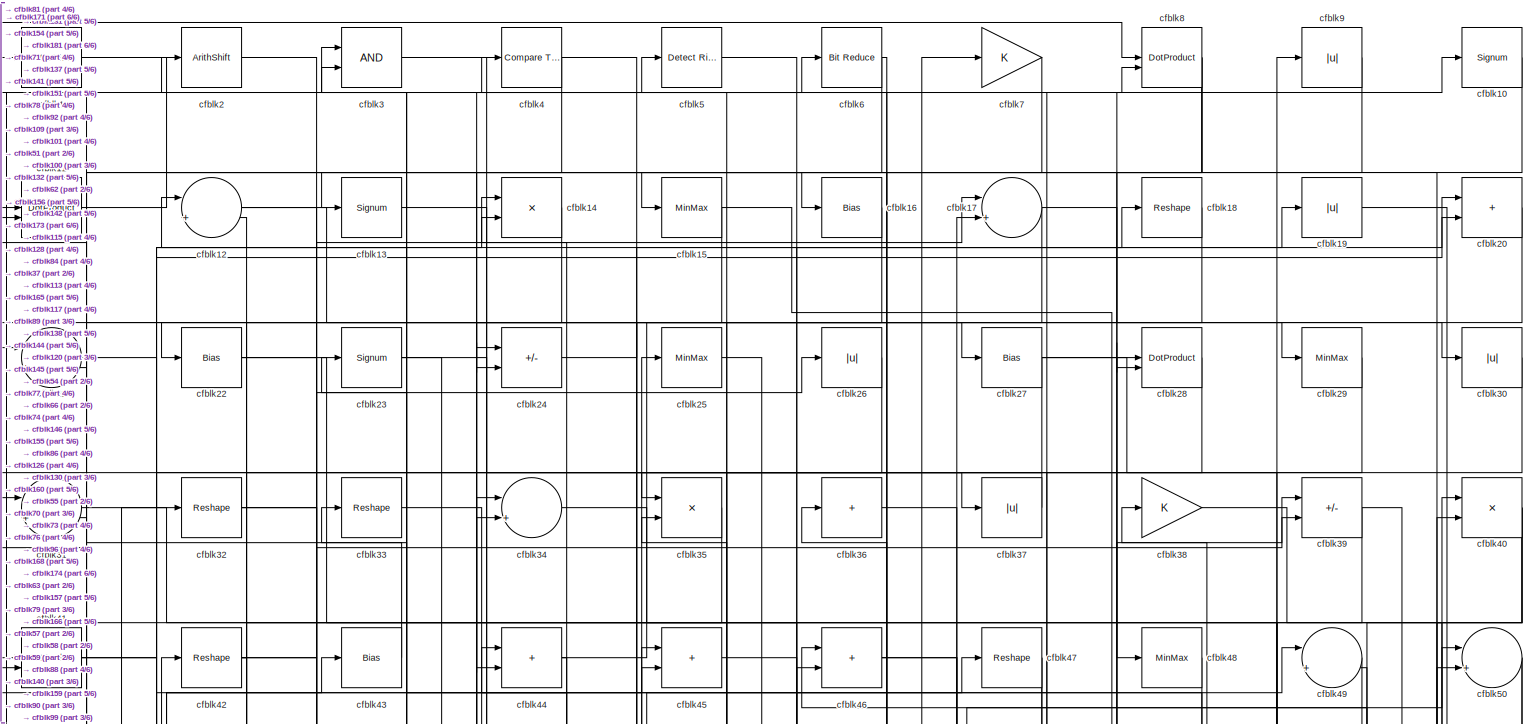
[diagram: root canvas - part 1/6, full width, top band]
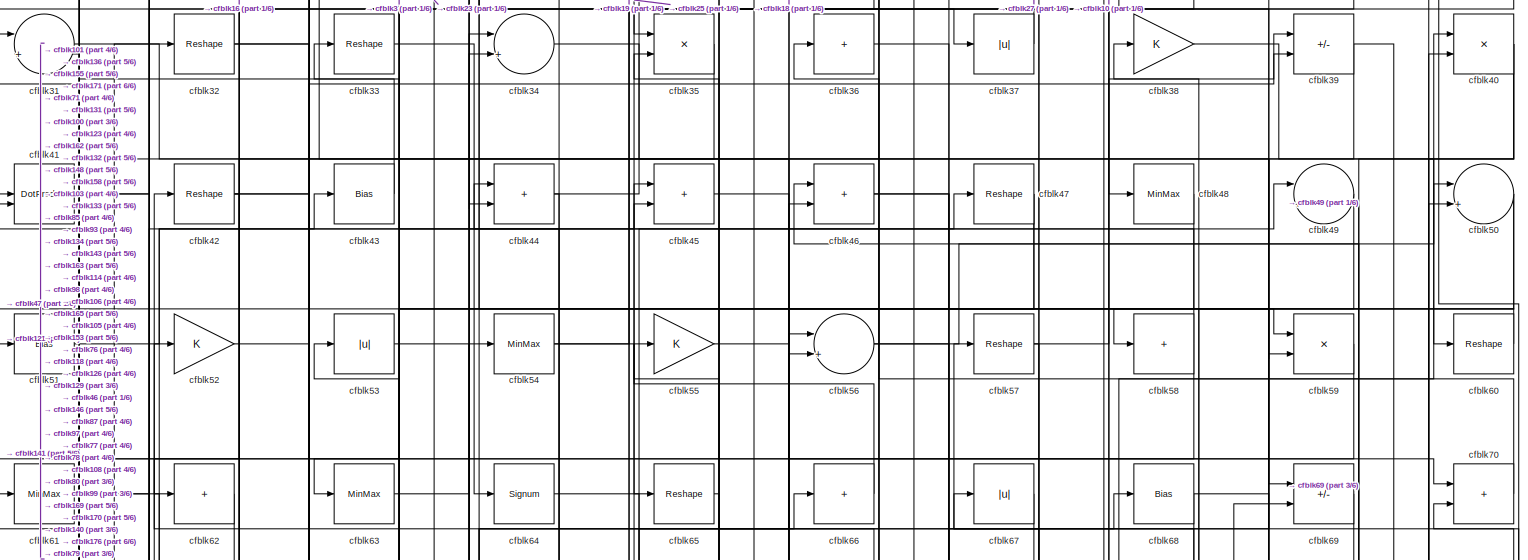
[diagram: root canvas - part 2/6, full width, top band]
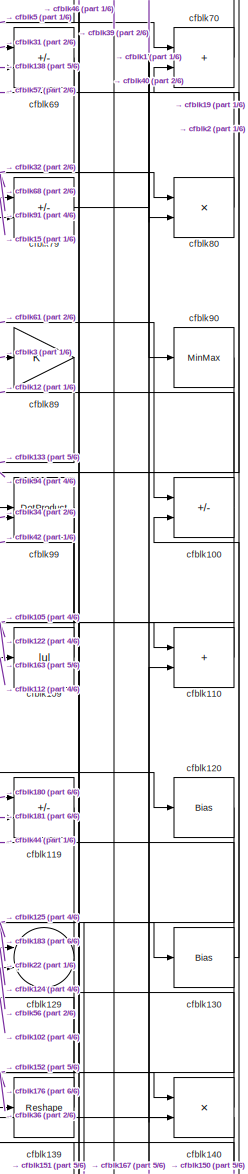
[diagram: root canvas - part 3/6, middle right region]
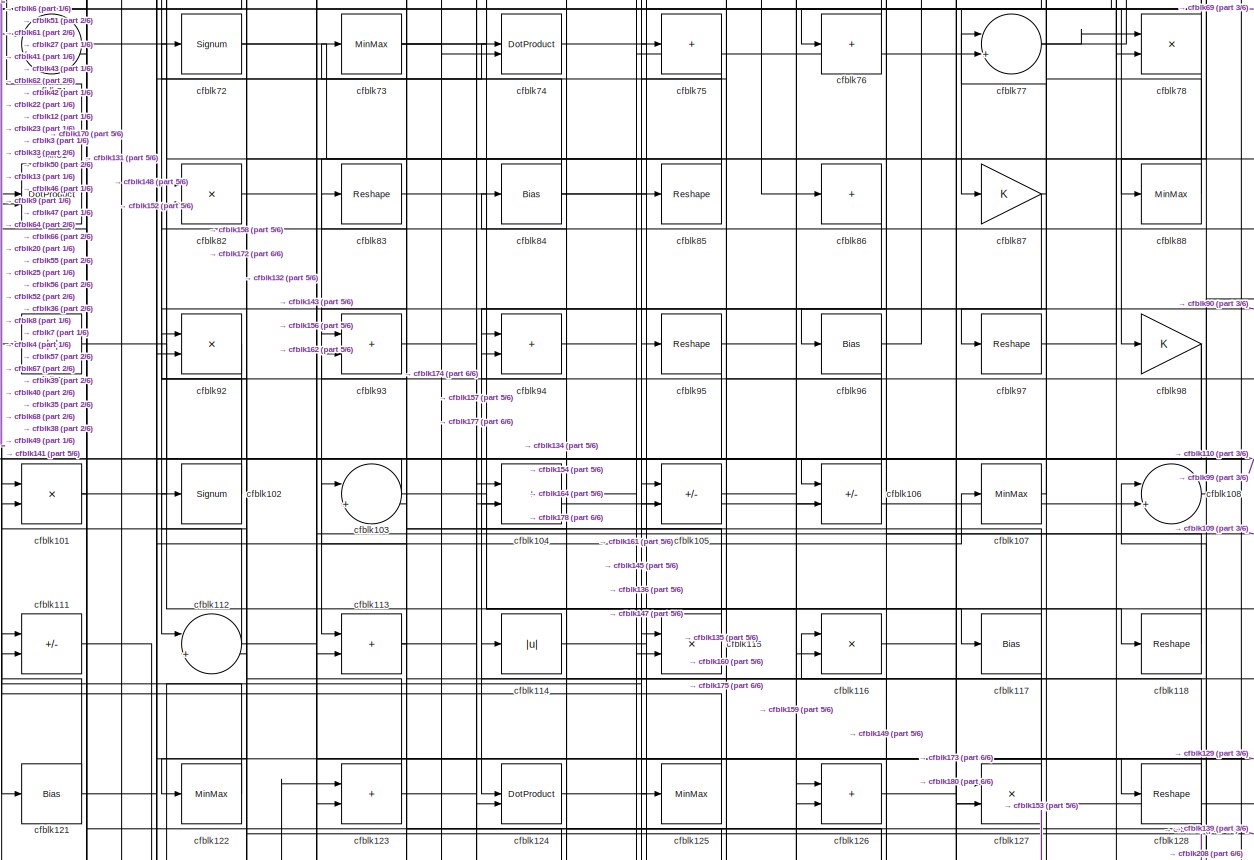
[diagram: root canvas - part 4/6, full width, middle band]
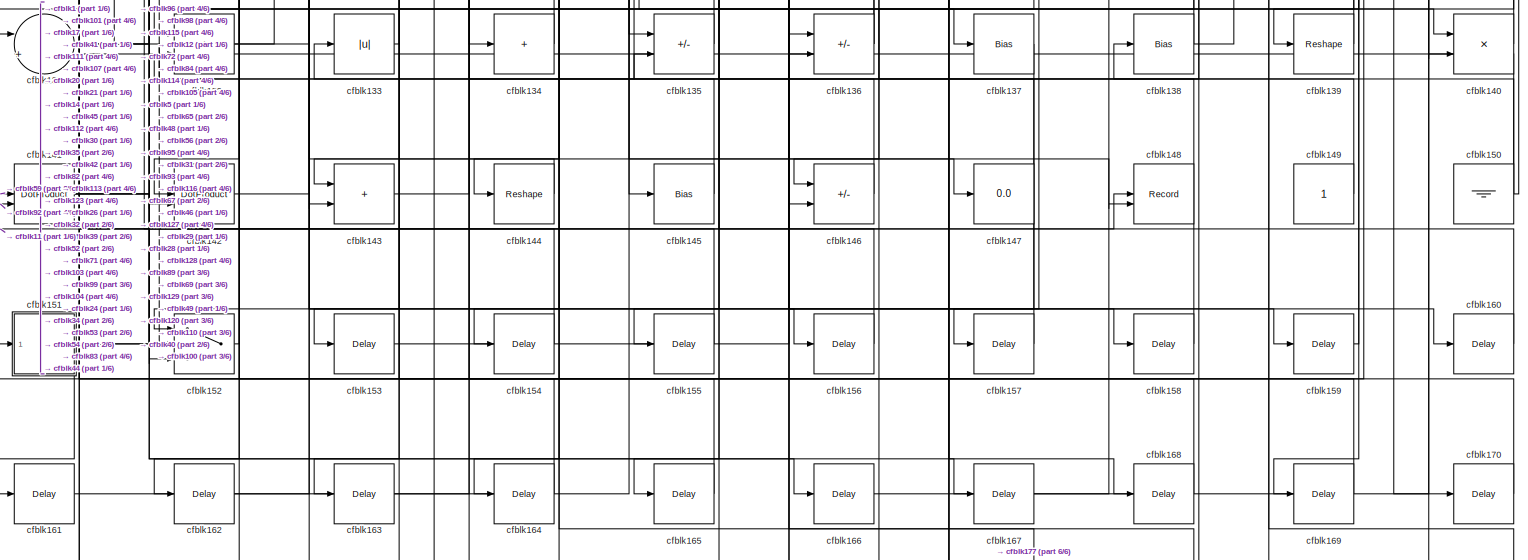
[diagram: root canvas - part 5/6, full width, bottom band]
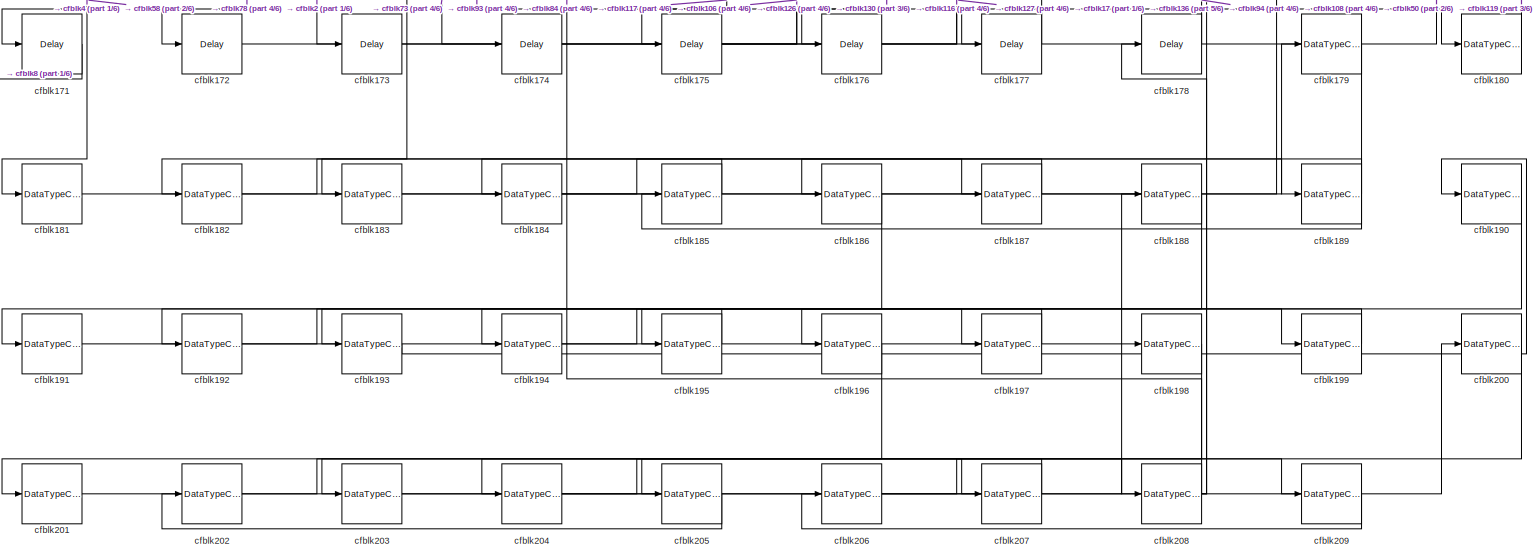
[diagram: root canvas - part 6/6, full width, bottom band]
MODEL slx_5cf155c669c9
KIND model
CONFIG AbsTol = auto
CONFIG EnableMultiTasking = off
CONFIG FixedStep = auto
CONFIG MaxStep = auto
CONFIG MinStep = auto
CONFIG RelTol = 1e-3
CONFIG SampleTimeConstraint = Unconstrained
CONFIG SolverName = VariableStepAuto
CONFIG StartTime = 0.0
CONFIG StopTime = 10.0
BLOCK [Reference] cfblk1  REF=simulink/Logic and Bit
Operations/Detect
Increase
  LibrarySourceBlock = hdlsllib/Logic and Bit\nOperations/Detect\nIncrease
  SourceBlock = simulink/Logic and Bit\nOperations/Detect\nIncrease
  SourceType = Detect Increase
BLOCK [Signum] cfblk10
BLOCK [Sum] cfblk100
  IconShape = rectangular
  Inputs = +-
BLOCK [Product] cfblk101
  Inputs = */
  RndMeth = Zero
  SaturateOnIntegerOverflow = on
BLOCK [Signum] cfblk102
BLOCK [Sum] cfblk103
  Inputs = |++
BLOCK [Sum] cfblk104
  IconShape = rectangular
BLOCK [Sum] cfblk105
  IconShape = rectangular
  Inputs = +-
BLOCK [Sum] cfblk106
  IconShape = rectangular
  Inputs = +-
BLOCK [MinMax] cfblk107
BLOCK [Sum] cfblk108
  Inputs = |++
BLOCK [Abs] cfblk109
  SaturateOnIntegerOverflow = off
BLOCK [DotProduct] cfblk11
  OutDataTypeStr = Inherit: Inherit via internal rule
BLOCK [Sum] cfblk110
  IconShape = rectangular
BLOCK [Sum] cfblk111
  IconShape = rectangular
  Inputs = +-
BLOCK [Sum] cfblk112
  Inputs = |++
BLOCK [Sum] cfblk113
  IconShape = rectangular
BLOCK [Abs] cfblk114
  SaturateOnIntegerOverflow = off
BLOCK [Product] cfblk115
  Inputs = */
  RndMeth = Zero
  SaturateOnIntegerOverflow = on
BLOCK [Product] cfblk116
  Inputs = */
  RndMeth = Zero
  SaturateOnIntegerOverflow = on
BLOCK [Bias] cfblk117
  Bias = 0.0
  SaturateOnIntegerOverflow = off
BLOCK [Reshape] cfblk118
BLOCK [Sum] cfblk119
  IconShape = rectangular
  Inputs = +-
BLOCK [Sum] cfblk12
  Inputs = |++
BLOCK [Bias] cfblk120
  Bias = 0.0
  SaturateOnIntegerOverflow = off
BLOCK [Bias] cfblk121
  Bias = 0.0
  SaturateOnIntegerOverflow = off
BLOCK [MinMax] cfblk122
BLOCK [Sum] cfblk123
  IconShape = rectangular
BLOCK [DotProduct] cfblk124
  OutDataTypeStr = Inherit: Inherit via internal rule
BLOCK [MinMax] cfblk125
BLOCK [Sum] cfblk126
  IconShape = rectangular
BLOCK [Product] cfblk127
  Inputs = */
  RndMeth = Zero
  SaturateOnIntegerOverflow = on
BLOCK [Reshape] cfblk128
BLOCK [Sum] cfblk129
  Inputs = |++
BLOCK [Signum] cfblk13
BLOCK [Bias] cfblk130
  Bias = 0.0
  SaturateOnIntegerOverflow = off
BLOCK [Sum] cfblk131
  Inputs = |++
BLOCK [Sum] cfblk132
  IconShape = rectangular
BLOCK [Abs] cfblk133
  SaturateOnIntegerOverflow = off
BLOCK [Sum] cfblk134
  IconShape = rectangular
  Inputs = +
BLOCK [Sum] cfblk135
  IconShape = rectangular
  Inputs = +-
BLOCK [Sum] cfblk136
  IconShape = rectangular
  Inputs = +-
BLOCK [Bias] cfblk137
  Bias = 0.0
  SaturateOnIntegerOverflow = off
BLOCK [Bias] cfblk138
  Bias = 0.0
  SaturateOnIntegerOverflow = off
BLOCK [Reshape] cfblk139
BLOCK [Product] cfblk14
  Inputs = */
  RndMeth = Zero
  SaturateOnIntegerOverflow = on
BLOCK [Product] cfblk140
  Inputs = */
  RndMeth = Zero
  SaturateOnIntegerOverflow = on
BLOCK [DotProduct] cfblk141
  OutDataTypeStr = Inherit: Inherit via internal rule
BLOCK [DotProduct] cfblk142
  OutDataTypeStr = Inherit: Inherit via internal rule
BLOCK [Sum] cfblk143
  IconShape = rectangular
BLOCK [Reshape] cfblk144
BLOCK [Bias] cfblk145
  Bias = 0.0
  SaturateOnIntegerOverflow = off
BLOCK [Sum] cfblk146
  IconShape = rectangular
  Inputs = +-
BLOCK [Display] cfblk147
  Decimation = 1
BLOCK [Record] cfblk148
  CompatibilityTag = XY
  FileSettingsInternal = {"entries":[{"content":{"excelSettings":{"content":{},"type":"Streamout.ExcelSettings"}},"type":"Streamout.FileSettingStorage","uuid":""}],"packageUris":["http:\/\/schema.mathworks.com\/mf0\/streamout_blocks\/R2020a"],"version":"1.0"}
  Layout = [1 1]
  SignalsInternal = {"entries":[{"content":{"signals":[{"content":{"blockPath":[],"dimensions":[1],"domain":"","lineColor":"#a2142f","plots":[1],"port":1,"signalID":1719,"signalName":"XY Graph:1"},"type":"RecordBlkView.Signal","uuid":""},{"content":{"blockPath":[],"dimensions":[1],"domain":"","lineColor":"#139fff","plots":[1],"port":2,"signalID":1722,"signalName":"XY Graph:2"},"type":"RecordBlkView.Signal","uuid":""}...<+146ch>
  VisualizationBindings = {"xyplotplugin":{"info":[{"series":[{"bindingParametersList":[{"parameter":"X-Axis","signalID":1719,"signalName":"XY Graph:1"},{"parameter":"Y-Axis","signalID":1722,"signalName":"XY Graph:2"}],"seriesID":40114}],"subplotID":1}]}}
  st = -1
BLOCK [Constant] cfblk149
  SampleTime = -1
BLOCK [MinMax] cfblk15
BLOCK [Ground] cfblk150
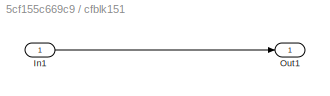
BLOCK [SubSystem] cfblk151
  LibrarySourceBlock = hdlsllib/Ports &\nSubsystems/Subsystem
BLOCK [Inport] cfblk151/In1
BLOCK [Outport] cfblk151/Out1
BLOCK [Switch] cfblk152
  InputSameDT = off
  SaturateOnIntegerOverflow = off
BLOCK [Delay] cfblk153
  InputPortMap = u0
  SampleTime = 1
BLOCK [Delay] cfblk154
  InputPortMap = u0
  SampleTime = 1
BLOCK [Delay] cfblk155
  InputPortMap = u0
  SampleTime = 1
BLOCK [Delay] cfblk156
  InputPortMap = u0
  SampleTime = 1
BLOCK [Delay] cfblk157
  InputPortMap = u0
  SampleTime = 1
BLOCK [Delay] cfblk158
  InputPortMap = u0
  SampleTime = 1
BLOCK [Delay] cfblk159
  InputPortMap = u0
  SampleTime = 1
BLOCK [Bias] cfblk16
  Bias = 0.0
  SaturateOnIntegerOverflow = off
BLOCK [Delay] cfblk160
  InputPortMap = u0
  SampleTime = 1
BLOCK [Delay] cfblk161
  InputPortMap = u0
  SampleTime = 1
BLOCK [Delay] cfblk162
  InputPortMap = u0
  SampleTime = 1
BLOCK [Delay] cfblk163
  InputPortMap = u0
  SampleTime = 1
BLOCK [Delay] cfblk164
  InputPortMap = u0
  SampleTime = 1
BLOCK [Delay] cfblk165
  InputPortMap = u0
  SampleTime = 1
BLOCK [Delay] cfblk166
  InputPortMap = u0
  SampleTime = 1
BLOCK [Delay] cfblk167
  InputPortMap = u0
  SampleTime = 1
BLOCK [Delay] cfblk168
  InputPortMap = u0
  SampleTime = 1
BLOCK [Delay] cfblk169
  InputPortMap = u0
  SampleTime = 1
BLOCK [Sum] cfblk17
  Inputs = |++
BLOCK [Delay] cfblk170
  InputPortMap = u0
  SampleTime = 1
BLOCK [Delay] cfblk171
  InputPortMap = u0
  SampleTime = 1
BLOCK [Delay] cfblk172
  InputPortMap = u0
  SampleTime = 1
BLOCK [Delay] cfblk173
  InputPortMap = u0
  SampleTime = 1
BLOCK [Delay] cfblk174
  InputPortMap = u0
  SampleTime = 1
BLOCK [Delay] cfblk175
  InputPortMap = u0
  SampleTime = 1
BLOCK [Delay] cfblk176
  InputPortMap = u0
  SampleTime = 1
BLOCK [Delay] cfblk177
  InputPortMap = u0
  SampleTime = 1
BLOCK [Delay] cfblk178
  InputPortMap = u0
  SampleTime = 1
BLOCK [DataTypeConversion] cfblk179
  RndMeth = Floor
  SaturateOnIntegerOverflow = off
BLOCK [Reshape] cfblk18
BLOCK [DataTypeConversion] cfblk180
  OutDataTypeStr = uint8
  RndMeth = Floor
  SaturateOnIntegerOverflow = off
BLOCK [DataTypeConversion] cfblk181
  OutDataTypeStr = uint8
  RndMeth = Floor
  SaturateOnIntegerOverflow = off
BLOCK [DataTypeConversion] cfblk182
  RndMeth = Floor
  SaturateOnIntegerOverflow = off
BLOCK [DataTypeConversion] cfblk183
  OutDataTypeStr = uint8
  RndMeth = Floor
  SaturateOnIntegerOverflow = off
BLOCK [DataTypeConversion] cfblk184
  RndMeth = Floor
  SaturateOnIntegerOverflow = off
BLOCK [DataTypeConversion] cfblk185
  OutDataTypeStr = uint8
  RndMeth = Floor
  SaturateOnIntegerOverflow = off
BLOCK [DataTypeConversion] cfblk186
  RndMeth = Floor
  SaturateOnIntegerOverflow = off
BLOCK [DataTypeConversion] cfblk187
  OutDataTypeStr = uint8
  RndMeth = Floor
  SaturateOnIntegerOverflow = off
BLOCK [DataTypeConversion] cfblk188
  RndMeth = Floor
  SaturateOnIntegerOverflow = off
BLOCK [DataTypeConversion] cfblk189
  OutDataTypeStr = uint8
  RndMeth = Floor
  SaturateOnIntegerOverflow = off
BLOCK [Abs] cfblk19
  SaturateOnIntegerOverflow = off
BLOCK [DataTypeConversion] cfblk190
  RndMeth = Floor
  SaturateOnIntegerOverflow = off
BLOCK [DataTypeConversion] cfblk191
  OutDataTypeStr = uint8
  RndMeth = Floor
  SaturateOnIntegerOverflow = off
BLOCK [DataTypeConversion] cfblk192
  RndMeth = Floor
  SaturateOnIntegerOverflow = off
BLOCK [DataTypeConversion] cfblk193
  OutDataTypeStr = uint8
  RndMeth = Floor
  SaturateOnIntegerOverflow = off
BLOCK [DataTypeConversion] cfblk194
  RndMeth = Floor
  SaturateOnIntegerOverflow = off
BLOCK [DataTypeConversion] cfblk195
  OutDataTypeStr = uint8
  RndMeth = Floor
  SaturateOnIntegerOverflow = off
BLOCK [DataTypeConversion] cfblk196
  RndMeth = Floor
  SaturateOnIntegerOverflow = off
BLOCK [DataTypeConversion] cfblk197
  OutDataTypeStr = uint8
  RndMeth = Floor
  SaturateOnIntegerOverflow = off
BLOCK [DataTypeConversion] cfblk198
  RndMeth = Floor
  SaturateOnIntegerOverflow = off
BLOCK [DataTypeConversion] cfblk199
  OutDataTypeStr = uint8
  RndMeth = Floor
  SaturateOnIntegerOverflow = off
BLOCK [ArithShift] cfblk2
  BitShiftNumber = 8
  InputPortMap = u0
BLOCK [Sum] cfblk20
  IconShape = rectangular
BLOCK [DataTypeConversion] cfblk200
  RndMeth = Floor
  SaturateOnIntegerOverflow = off
BLOCK [DataTypeConversion] cfblk201
  OutDataTypeStr = uint8
  RndMeth = Floor
  SaturateOnIntegerOverflow = off
BLOCK [DataTypeConversion] cfblk202
  RndMeth = Floor
  SaturateOnIntegerOverflow = off
BLOCK [DataTypeConversion] cfblk203
  OutDataTypeStr = uint8
  RndMeth = Floor
  SaturateOnIntegerOverflow = off
BLOCK [DataTypeConversion] cfblk204
  RndMeth = Floor
  SaturateOnIntegerOverflow = off
BLOCK [DataTypeConversion] cfblk205
  OutDataTypeStr = uint8
  RndMeth = Floor
  SaturateOnIntegerOverflow = off
BLOCK [DataTypeConversion] cfblk206
  RndMeth = Floor
  SaturateOnIntegerOverflow = off
BLOCK [DataTypeConversion] cfblk207
  OutDataTypeStr = uint8
  RndMeth = Floor
  SaturateOnIntegerOverflow = off
BLOCK [DataTypeConversion] cfblk208
  RndMeth = Floor
  SaturateOnIntegerOverflow = off
BLOCK [DataTypeConversion] cfblk209
  OutDataTypeStr = uint8
  RndMeth = Floor
  SaturateOnIntegerOverflow = off
BLOCK [Sum] cfblk21
  Inputs = |++
BLOCK [Bias] cfblk22
  Bias = 0.0
  SaturateOnIntegerOverflow = off
BLOCK [Signum] cfblk23
BLOCK [Sum] cfblk24
  IconShape = rectangular
  Inputs = +-
BLOCK [MinMax] cfblk25
BLOCK [Abs] cfblk26
  SaturateOnIntegerOverflow = off
BLOCK [Bias] cfblk27
  Bias = 0.0
  SaturateOnIntegerOverflow = off
BLOCK [DotProduct] cfblk28
  OutDataTypeStr = Inherit: Inherit via internal rule
BLOCK [MinMax] cfblk29
BLOCK [Logic] cfblk3
  AllPortsSameDT = off
  OutDataTypeStr = boolean
BLOCK [Abs] cfblk30
  SaturateOnIntegerOverflow = off
BLOCK [Sum] cfblk31
  Inputs = |++
BLOCK [Reshape] cfblk32
BLOCK [Reshape] cfblk33
BLOCK [Sum] cfblk34
  Inputs = |++
BLOCK [Product] cfblk35
  Inputs = */
  RndMeth = Zero
  SaturateOnIntegerOverflow = on
BLOCK [Sum] cfblk36
  IconShape = rectangular
  Inputs = +
BLOCK [Abs] cfblk37
  SaturateOnIntegerOverflow = off
BLOCK [Gain] cfblk38
BLOCK [Sum] cfblk39
  IconShape = rectangular
  Inputs = +-
BLOCK [Reference] cfblk4  REF=hdlsllib/Logic and Bit
Operations/Compare
To Zero
  SourceBlock = hdlsllib/Logic and Bit\nOperations/Compare\nTo Zero
  SourceType = Compare To Zero
BLOCK [Product] cfblk40
  Inputs = */
  RndMeth = Zero
  SaturateOnIntegerOverflow = on
BLOCK [DotProduct] cfblk41
  OutDataTypeStr = Inherit: Inherit via internal rule
BLOCK [Reshape] cfblk42
BLOCK [Bias] cfblk43
  Bias = 0.0
  SaturateOnIntegerOverflow = off
BLOCK [Sum] cfblk44
  IconShape = rectangular
BLOCK [Sum] cfblk45
  IconShape = rectangular
BLOCK [Sum] cfblk46
  IconShape = rectangular
BLOCK [Reshape] cfblk47
BLOCK [MinMax] cfblk48
BLOCK [Sum] cfblk49
  Inputs = |++
BLOCK [Reference] cfblk5  REF=hdlsllib/Logic and Bit
Operations/Detect Rise
Positive
  SourceBlock = hdlsllib/Logic and Bit\nOperations/Detect Rise\nPositive
  SourceType = Detect Rise Positive
BLOCK [Sum] cfblk50
  Inputs = |++
BLOCK [Bias] cfblk51
  Bias = 0.0
  SaturateOnIntegerOverflow = off
BLOCK [Gain] cfblk52
BLOCK [Abs] cfblk53
  SaturateOnIntegerOverflow = off
BLOCK [MinMax] cfblk54
BLOCK [Gain] cfblk55
BLOCK [Sum] cfblk56
  Inputs = |++
BLOCK [Reshape] cfblk57
BLOCK [Sum] cfblk58
  IconShape = rectangular
  Inputs = +
BLOCK [Product] cfblk59
  Inputs = */
  RndMeth = Zero
  SaturateOnIntegerOverflow = on
BLOCK [Reference] cfblk6  REF=hdlsllib/Logic and Bit
Operations/Bit Reduce
  SourceBlock = hdlsllib/Logic and Bit\nOperations/Bit Reduce
  SourceType = Bit Reduce
BLOCK [Reshape] cfblk60
BLOCK [MinMax] cfblk61
BLOCK [Sum] cfblk62
  IconShape = rectangular
  Inputs = +
BLOCK [MinMax] cfblk63
BLOCK [Signum] cfblk64
BLOCK [Reshape] cfblk65
BLOCK [Sum] cfblk66
  IconShape = rectangular
  Inputs = +
BLOCK [Abs] cfblk67
  SaturateOnIntegerOverflow = off
BLOCK [Bias] cfblk68
  Bias = 0.0
  SaturateOnIntegerOverflow = off
BLOCK [Sum] cfblk69
  IconShape = rectangular
  Inputs = +-
BLOCK [Gain] cfblk7
BLOCK [Sum] cfblk70
  IconShape = rectangular
BLOCK [Sum] cfblk71
  Inputs = |++
BLOCK [Signum] cfblk72
BLOCK [MinMax] cfblk73
BLOCK [DotProduct] cfblk74
  OutDataTypeStr = Inherit: Inherit via internal rule
BLOCK [Sum] cfblk75
  IconShape = rectangular
  Inputs = +
BLOCK [Sum] cfblk76
  IconShape = rectangular
  Inputs = +
BLOCK [Sum] cfblk77
  Inputs = |++
BLOCK [Product] cfblk78
  Inputs = */
  RndMeth = Zero
  SaturateOnIntegerOverflow = on
BLOCK [Sum] cfblk79
  IconShape = rectangular
  Inputs = +-
BLOCK [DotProduct] cfblk8
  OutDataTypeStr = Inherit: Inherit via internal rule
BLOCK [Product] cfblk80
  Inputs = */
  RndMeth = Zero
  SaturateOnIntegerOverflow = on
BLOCK [DotProduct] cfblk81
  OutDataTypeStr = Inherit: Inherit via internal rule
BLOCK [Product] cfblk82
  Inputs = */
  RndMeth = Zero
  SaturateOnIntegerOverflow = on
BLOCK [Reshape] cfblk83
BLOCK [Bias] cfblk84
  Bias = 0.0
  SaturateOnIntegerOverflow = off
BLOCK [Reshape] cfblk85
BLOCK [Sum] cfblk86
  IconShape = rectangular
  Inputs = +
BLOCK [Gain] cfblk87
BLOCK [MinMax] cfblk88
BLOCK [Gain] cfblk89
BLOCK [Abs] cfblk9
  SaturateOnIntegerOverflow = off
BLOCK [MinMax] cfblk90
BLOCK [Abs] cfblk91
  SaturateOnIntegerOverflow = off
BLOCK [Product] cfblk92
  Inputs = */
  RndMeth = Zero
  SaturateOnIntegerOverflow = on
BLOCK [Sum] cfblk93
  IconShape = rectangular
BLOCK [Sum] cfblk94
  IconShape = rectangular
BLOCK [Reshape] cfblk95
BLOCK [Bias] cfblk96
  Bias = 0.0
  SaturateOnIntegerOverflow = off
BLOCK [Reshape] cfblk97
BLOCK [Gain] cfblk98
BLOCK [DotProduct] cfblk99
  OutDataTypeStr = Inherit: Inherit via internal rule
NET cfblk100:1 -> cfblk12:2, cfblk139:1
NET cfblk101:1 -> cfblk43:1, cfblk61:1
LINE cfblk102:1 -> cfblk82:1
NET cfblk103:1 -> cfblk101:1, cfblk116:2
LINE cfblk104:1 -> cfblk85:1
LINE cfblk105:1 -> cfblk56:2
LINE cfblk106:1 -> cfblk55:1
LINE cfblk107:1 -> cfblk77:1
LINE cfblk108:1 -> cfblk38:1
LINE cfblk109:1 -> cfblk42:1
LINE cfblk10:1 -> cfblk13:1
LINE cfblk110:1 -> cfblk105:1
LINE cfblk111:1 -> cfblk148:1
NET cfblk112:1 -> cfblk109:1, cfblk81:1
NET cfblk113:1 -> cfblk73:1, cfblk8:2
LINE cfblk114:1 -> cfblk66:1
NET cfblk115:1 -> cfblk12:1, cfblk72:1
LINE cfblk116:1 -> cfblk180:1
NET cfblk117:1 -> cfblk175:1, cfblk75:1
LINE cfblk118:1 -> cfblk36:1
LINE cfblk119:1 -> cfblk183:1
LINE cfblk11:1 -> cfblk16:1
LINE cfblk120:1 -> cfblk151:1
NET cfblk121:1 -> cfblk51:1, cfblk74:1
LINE cfblk122:1 -> cfblk111:1
NET cfblk123:1 -> cfblk108:2, cfblk92:1
LINE cfblk124:1 -> cfblk129:1
LINE cfblk125:1 -> cfblk111:2
LINE cfblk126:1 -> cfblk68:1
NET cfblk127:1 -> cfblk104:2, cfblk153:1
NET cfblk128:1 -> cfblk142:2, cfblk23:1
NET cfblk129:1 -> cfblk125:1, cfblk152:3
NET cfblk12:1 -> cfblk120:1, cfblk145:1
NET cfblk130:1 -> cfblk176:1, cfblk44:1, cfblk70:2
NET cfblk131:1 -> cfblk107:1, cfblk135:2, cfblk20:2, cfblk32:1
NET cfblk132:1 -> cfblk123:1, cfblk39:1
LINE cfblk133:1 -> cfblk53:1
LINE cfblk134:1 -> cfblk83:1
LINE cfblk135:1 -> cfblk114:1
NET cfblk136:1 -> cfblk31:1, cfblk93:2
LINE cfblk137:1 -> cfblk152:1
NET cfblk138:1 -> cfblk14:1, cfblk69:2
LINE cfblk139:1 -> cfblk102:1
LINE cfblk13:1 -> cfblk117:1
LINE cfblk140:1 -> cfblk46:1
NET cfblk141:1 -> cfblk166:1, cfblk167:1, cfblk45:2
LINE cfblk142:1 -> cfblk26:1
LINE cfblk143:1 -> cfblk54:1
LINE cfblk144:1 -> cfblk143:1
LINE cfblk145:1 -> cfblk95:1
LINE cfblk146:1 -> cfblk5:1
LINE cfblk149:1 -> cfblk116:1
LINE cfblk14:1 -> cfblk21:1
NET cfblk150:1 -> cfblk100:2, cfblk131:2, cfblk138:1
LINE cfblk151/In1:1 -> cfblk151/Out1:1
NET cfblk151:1 -> cfblk14:2, cfblk161:1, cfblk45:1
LINE cfblk152:1 -> cfblk82:2
LINE cfblk153:1 -> cfblk56:1
LINE cfblk154:1 -> cfblk1:1
LINE cfblk155:1 -> cfblk31:2
LINE cfblk156:1 -> cfblk11:1
LINE cfblk157:1 -> cfblk104:1
LINE cfblk158:1 -> cfblk112:2
LINE cfblk159:1 -> cfblk49:2
NET cfblk15:1 -> cfblk44:2, cfblk79:1
LINE cfblk160:1 -> cfblk105:2
LINE cfblk161:1 -> cfblk115:2
LINE cfblk162:1 -> cfblk113:2
LINE cfblk163:1 -> cfblk34:2
LINE cfblk164:1 -> cfblk103:1
LINE cfblk165:1 -> cfblk24:1
LINE cfblk166:1 -> cfblk28:1
LINE cfblk167:1 -> cfblk110:2
LINE cfblk168:1 -> cfblk41:2
LINE cfblk169:1 -> cfblk132:2
LINE cfblk16:1 -> cfblk62:1
LINE cfblk170:1 -> cfblk101:2
LINE cfblk171:1 -> cfblk8:1
LINE cfblk172:1 -> cfblk126:2
LINE cfblk173:1 -> cfblk127:1
LINE cfblk174:1 -> cfblk17:2
LINE cfblk175:1 -> cfblk106:2
LINE cfblk176:1 -> cfblk50:2
LINE cfblk177:1 -> cfblk136:1
LINE cfblk178:1 -> cfblk94:2
LINE cfblk179:1 -> cfblk185:1
NET cfblk17:1 -> cfblk131:1, cfblk29:1
LINE cfblk180:1 -> cfblk119:1
LINE cfblk181:1 -> cfblk119:2
LINE cfblk182:1 -> cfblk187:1
LINE cfblk183:1 -> cfblk179:1
LINE cfblk184:1 -> cfblk189:1
LINE cfblk185:1 -> cfblk182:1
LINE cfblk186:1 -> cfblk191:1
LINE cfblk187:1 -> cfblk184:1
LINE cfblk188:1 -> cfblk193:1
LINE cfblk189:1 -> cfblk186:1
LINE cfblk18:1 -> cfblk22:1
LINE cfblk190:1 -> cfblk195:1
LINE cfblk191:1 -> cfblk188:1
LINE cfblk192:1 -> cfblk197:1
LINE cfblk193:1 -> cfblk190:1
LINE cfblk194:1 -> cfblk199:1
LINE cfblk195:1 -> cfblk192:1
LINE cfblk196:1 -> cfblk201:1
LINE cfblk197:1 -> cfblk194:1
LINE cfblk198:1 -> cfblk203:1
LINE cfblk199:1 -> cfblk196:1
LINE cfblk19:1 -> cfblk99:1
LINE cfblk1:1 -> cfblk90:1
LINE cfblk200:1 -> cfblk205:1
LINE cfblk201:1 -> cfblk198:1
LINE cfblk202:1 -> cfblk207:1
LINE cfblk203:1 -> cfblk200:1
LINE cfblk204:1 -> cfblk209:1
LINE cfblk205:1 -> cfblk202:1
LINE cfblk206:1 -> cfblk208:1
LINE cfblk207:1 -> cfblk204:1
NET cfblk208:1 -> cfblk108:1, cfblk178:1, cfblk84:1
LINE cfblk209:1 -> cfblk206:1
LINE cfblk20:1 -> cfblk115:1
LINE cfblk21:1 -> cfblk137:1
NET cfblk22:1 -> cfblk126:1, cfblk130:1
NET cfblk23:1 -> cfblk37:1, cfblk74:2
LINE cfblk24:1 -> cfblk30:1
LINE cfblk25:1 -> cfblk86:1
LINE cfblk26:1 -> cfblk155:1
NET cfblk27:1 -> cfblk48:1, cfblk59:2, cfblk92:2
LINE cfblk28:1 -> cfblk41:1
LINE cfblk29:1 -> cfblk157:1
LINE cfblk2:1 -> cfblk173:1
LINE cfblk30:1 -> cfblk132:1
LINE cfblk31:1 -> cfblk69:1
NET cfblk32:1 -> cfblk158:1, cfblk80:2
LINE cfblk33:1 -> cfblk64:1
LINE cfblk34:1 -> cfblk99:2
LINE cfblk35:1 -> cfblk162:1
LINE cfblk36:1 -> cfblk140:1
LINE cfblk37:1 -> cfblk35:1
LINE cfblk38:1 -> cfblk60:1
NET cfblk39:1 -> cfblk170:1, cfblk79:2
LINE cfblk3:1 -> cfblk89:1
NET cfblk40:1 -> cfblk140:2, cfblk169:1, cfblk71:1
NET cfblk41:1 -> cfblk20:1, cfblk78:2
NET cfblk42:1 -> cfblk124:2, cfblk142:1, cfblk17:1
LINE cfblk43:1 -> cfblk11:2
NET cfblk44:1 -> cfblk144:1, cfblk27:1
LINE cfblk45:1 -> cfblk160:1
NET cfblk46:1 -> cfblk168:1, cfblk59:1
NET cfblk47:1 -> cfblk63:1, cfblk81:2
LINE cfblk48:1 -> cfblk146:2
LINE cfblk49:1 -> cfblk88:1
NET cfblk4:1 -> cfblk181:1, cfblk77:2
NET cfblk50:1 -> cfblk103:2, cfblk93:1
LINE cfblk51:1 -> cfblk49:1
LINE cfblk52:1 -> cfblk148:2
LINE cfblk53:1 -> cfblk134:1
NET cfblk54:1 -> cfblk19:1, cfblk65:1
LINE cfblk55:1 -> cfblk18:1
NET cfblk56:1 -> cfblk129:2, cfblk50:1
NET cfblk57:1 -> cfblk10:1, cfblk97:1
NET cfblk58:1 -> cfblk171:1, cfblk3:1
LINE cfblk59:1 -> cfblk141:1
LINE cfblk5:1 -> cfblk70:1
LINE cfblk60:1 -> cfblk58:1
NET cfblk61:1 -> cfblk100:1, cfblk123:2
LINE cfblk62:1 -> cfblk121:1
LINE cfblk63:1 -> cfblk34:1
LINE cfblk64:1 -> cfblk98:1
LINE cfblk65:1 -> cfblk165:1
LINE cfblk66:1 -> cfblk25:1
LINE cfblk67:1 -> cfblk146:1
NET cfblk68:1 -> cfblk80:1, cfblk87:1
LINE cfblk69:1 -> cfblk91:1
NET cfblk6:1 -> cfblk71:2, cfblk96:1
LINE cfblk70:1 -> cfblk2:1
LINE cfblk71:1 -> cfblk143:2
NET cfblk72:1 -> cfblk128:1, cfblk135:1
NET cfblk73:1 -> cfblk174:1, cfblk46:2, cfblk9:1
LINE cfblk74:1 -> cfblk47:1
LINE cfblk75:1 -> cfblk113:1
LINE cfblk76:1 -> cfblk52:1
NET cfblk77:1 -> cfblk40:1, cfblk78:1
NET cfblk78:1 -> cfblk172:1, cfblk35:2
LINE cfblk79:1 -> cfblk40:2
LINE cfblk7:1 -> cfblk24:2
LINE cfblk80:1 -> cfblk57:1
LINE cfblk81:1 -> cfblk6:1
LINE cfblk82:1 -> cfblk156:1
LINE cfblk83:1 -> cfblk118:1
NET cfblk84:1 -> cfblk136:2, cfblk147:1, cfblk3:2
LINE cfblk85:1 -> cfblk33:1
LINE cfblk86:1 -> cfblk124:1
NET cfblk87:1 -> cfblk112:1, cfblk67:1
LINE cfblk88:1 -> cfblk4:1
LINE cfblk89:1 -> cfblk133:1
NET cfblk8:1 -> cfblk21:2, cfblk28:2, cfblk76:1
LINE cfblk90:1 -> cfblk94:1
LINE cfblk91:1 -> cfblk127:2
LINE cfblk92:1 -> cfblk141:2
LINE cfblk93:1 -> cfblk177:1
LINE cfblk94:1 -> cfblk110:1
NET cfblk95:1 -> cfblk152:2, cfblk159:1
NET cfblk96:1 -> cfblk164:1, cfblk7:1
LINE cfblk97:1 -> cfblk39:2
NET cfblk98:1 -> cfblk106:1, cfblk154:1
NET cfblk99:1 -> cfblk122:1, cfblk163:1
LINE cfblk9:1 -> cfblk15:1
note: NET lines group one-source signal fan-out (src -> all destinations, sorted); 1:1 wires keep LINE
